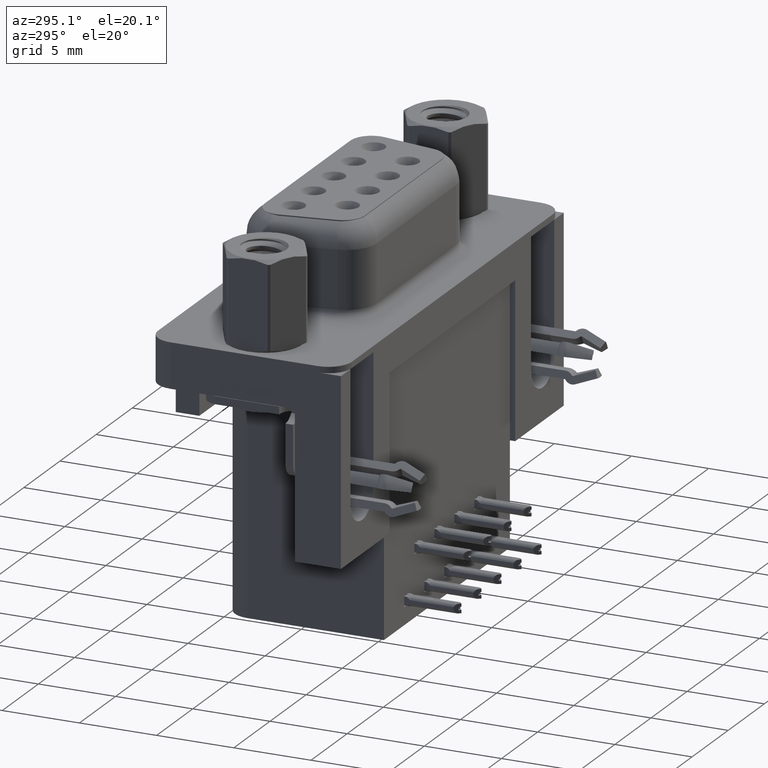
[diagram: clean part render]
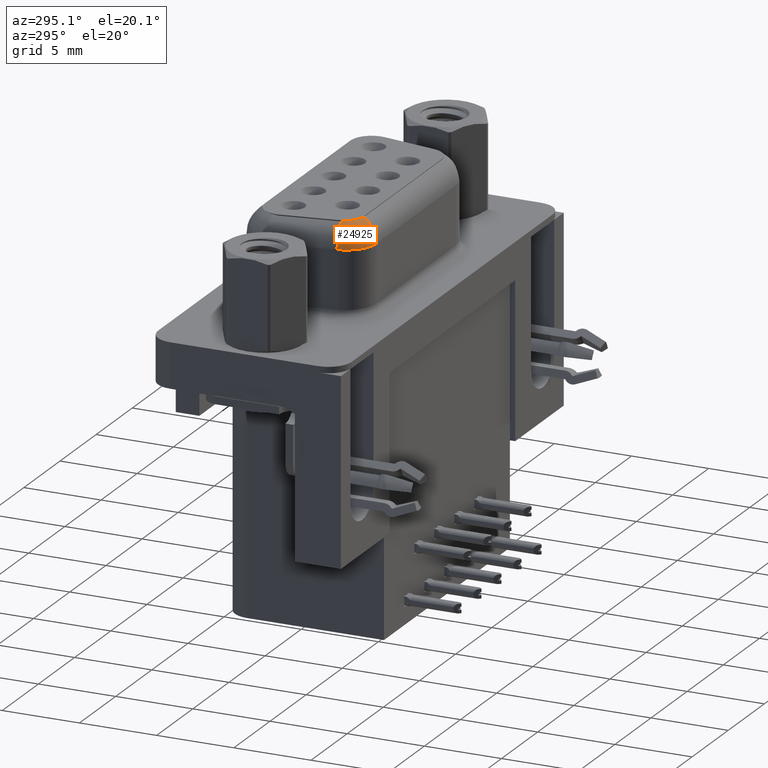
[diagram: same view with one face highlighted and labeled with its STEP entity id]
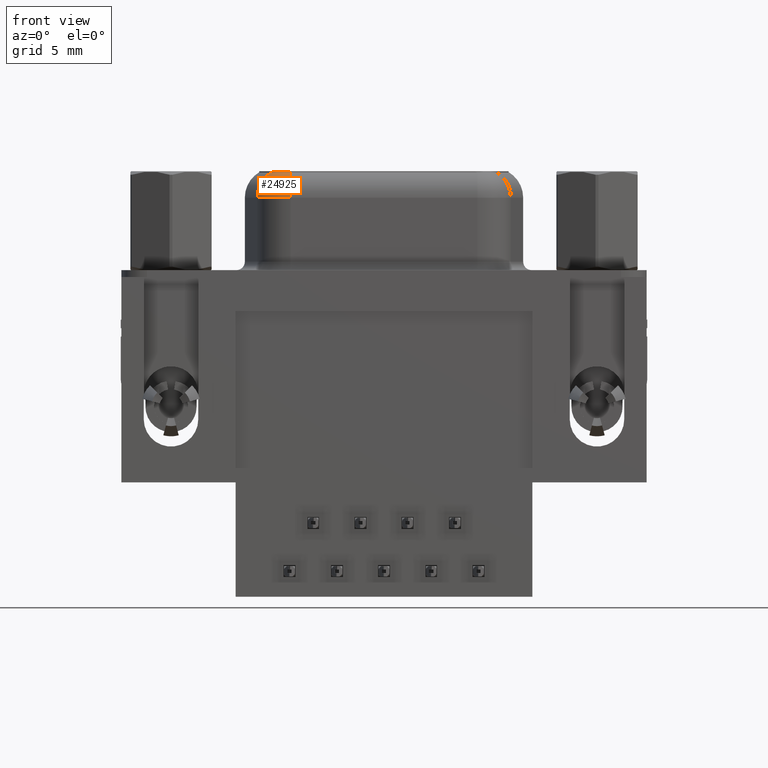
[diagram: same view with one face highlighted and labeled with its STEP entity id]
A machine part, auxiliary view. The second image highlights one B-rep face of the part: STEP entity #24925.
A second angle (front view) of the same face is appended — the face is thin or edge-on in the first view.
In plain terms, the highlighted toroidal blend (fillet) surface has major radius 0.25 mm and minor (blend) radius 1.75 mm.
Its self-contained STEP definition (entity closure, byte-faithful):
#56 = CARTESIAN_POINT ( 'NONE',  ( 7.017675224762986600, -2.200000000000001500, 4.650000000000000400 ) ) ;
#1805 = CARTESIAN_POINT ( 'NONE',  ( 7.017675224762986600, -3.093777408744929700, 6.154547089199006400 ) ) ;
#2365 = CARTESIAN_POINT ( 'NONE',  ( 6.092653593223852600, -2.633063771391241000, 6.168787626844466100 ) ) ;
#2428 = DIRECTION ( 'NONE',  ( 0.0000000000000000000, 0.0000000000000000000, 1.000000000000000000 ) ) ;
#2796 = DIRECTION ( 'NONE',  ( -0.0000000000000000000, -0.0000000000000000000, -1.000000000000000000 ) ) ;
#3173 = VERTEX_POINT ( 'NONE', #10840 ) ;
#3177 = EDGE_LOOP ( 'NONE', ( #26634, #14734, #21256, #25676 ) ) ;
#4728 = CARTESIAN_POINT ( 'NONE',  ( 5.859102686853968400, -2.154287597541234300, 6.134654486838705600 ) ) ;
#5023 = EDGE_CURVE ( 'NONE', #29029, #9042, #24766, .T. ) ;
#6175 = TOROIDAL_SURFACE ( 'NONE', #19568, 0.2499999999999991400, 1.750000000000000000 ) ;
#6874 = AXIS2_PLACEMENT_3D ( 'NONE', #7116, #23669, #9501 ) ;
#7116 = CARTESIAN_POINT ( 'NONE',  ( 7.017675224762986600, -1.950000000000002200, 4.650000000000000400 ) ) ;
#8393 = CIRCLE ( 'NONE', #6874, 1.999999999999999100 ) ;
#8751 = CARTESIAN_POINT ( 'NONE',  ( 6.885473480162253200, -3.081040139148920600, 6.162113674449635400 ) ) ;
#9042 = VERTEX_POINT ( 'NONE', #24260 ) ;
#9374 = CARTESIAN_POINT ( 'NONE',  ( 7.017675224762986600, -3.093777408744929700, 6.154547089199006400 ) ) ;
#9501 = DIRECTION ( 'NONE',  ( -1.000000000000000000, 0.0000000000000000000, 0.0000000000000000000 ) ) ;
#9523 = CARTESIAN_POINT ( 'NONE',  ( 5.048059718738568500, -2.297296355333849700, 4.650000000000000400 ) ) ;
#10411 = AXIS2_PLACEMENT_3D ( 'NONE', #27396, #13276, #29774 ) ;
#10840 = CARTESIAN_POINT ( 'NONE',  ( 7.017675224762986600, -3.950000000000001100, 4.650000000000000400 ) ) ;
#12367 = VERTEX_POINT ( 'NONE', #1805 ) ;
#13276 = DIRECTION ( 'NONE',  ( -0.1736481776669237500, 0.9848077530122092400, 0.0000000000000000000 ) ) ;
#14145 = CARTESIAN_POINT ( 'NONE',  ( 6.758252235000973100, -3.049510270096966700, 6.167309472126356200 ) ) ;
#14358 = CARTESIAN_POINT ( 'NONE',  ( 7.017675224762986600, -1.950000000000002200, 4.650000000000000400 ) ) ;
#14734 = ORIENTED_EDGE ( 'NONE', *, *, #27523, .T. ) ;
#16152 = CIRCLE ( 'NONE', #26719, 1.749999999999999800 ) ;
#16505 = CARTESIAN_POINT ( 'NONE',  ( 6.399311528594479300, -2.881617906570610000, 6.173886126210365300 ) ) ;
#16570 = DIRECTION ( 'NONE',  ( -1.000000000000000000, 0.0000000000000000000, 0.0000000000000000000 ) ) ;
#17074 = EDGE_CURVE ( 'NONE', #3173, #12367, #16152, .T. ) ;
#17995 = FACE_OUTER_BOUND ( 'NONE', #3177, .T. ) ;
#18238 = B_SPLINE_CURVE_WITH_KNOTS ( 'NONE', 3,
 ( #9374, #8751, #14145, #25828, #16505, #2365, #18871, #4728 ),
 .UNSPECIFIED., .F., .F.,
 ( 4, 2, 2, 4 ),
 ( 1.983970176013186200E-007, 0.0003936325107601579500, 0.0007870666245027145200, 0.001573934851987826600 ),
 .UNSPECIFIED. ) ;
#18871 = CARTESIAN_POINT ( 'NONE',  ( 5.937712384701671700, -2.404734489938255700, 6.155824661515727500 ) ) ;
#19305 = DIRECTION ( 'NONE',  ( -1.000000000000000000, 0.0000000000000000000, 0.0000000000000000000 ) ) ;
#19568 = AXIS2_PLACEMENT_3D ( 'NONE', #14358, #2796, #19305 ) ;
#21256 = ORIENTED_EDGE ( 'NONE', *, *, #5023, .F. ) ;
#23669 = DIRECTION ( 'NONE',  ( -0.0000000000000000000, -0.0000000000000000000, -1.000000000000000000 ) ) ;
#24260 = CARTESIAN_POINT ( 'NONE',  ( 5.859102686853968400, -2.154287597541234300, 6.134654486838705600 ) ) ;
#24766 = CIRCLE ( 'NONE', #10411, 1.750000000000000400 ) ;
#24857 = EDGE_CURVE ( 'NONE', #3173, #29029, #8393, .T. ) ;
#24925 = ADVANCED_FACE ( 'NONE', ( #17995 ), #6175, .T. ) ;
#25676 = ORIENTED_EDGE ( 'NONE', *, *, #24857, .F. ) ;
#25828 = CARTESIAN_POINT ( 'NONE',  ( 6.513630835937529900, -2.949426782402148700, 6.173259181862124300 ) ) ;
#26634 = ORIENTED_EDGE ( 'NONE', *, *, #17074, .T. ) ;
#26719 = AXIS2_PLACEMENT_3D ( 'NONE', #56, #16570, #2428 ) ;
#27396 = CARTESIAN_POINT ( 'NONE',  ( 6.771473286509935200, -1.993412044416732900, 4.650000000000000400 ) ) ;
#27523 = EDGE_CURVE ( 'NONE', #12367, #9042, #18238, .T. ) ;
#29029 = VERTEX_POINT ( 'NONE', #9523 ) ;
#29774 = DIRECTION ( 'NONE',  ( -0.9848077530122091300, -0.1736481776669237500, 0.0000000000000000000 ) ) ;